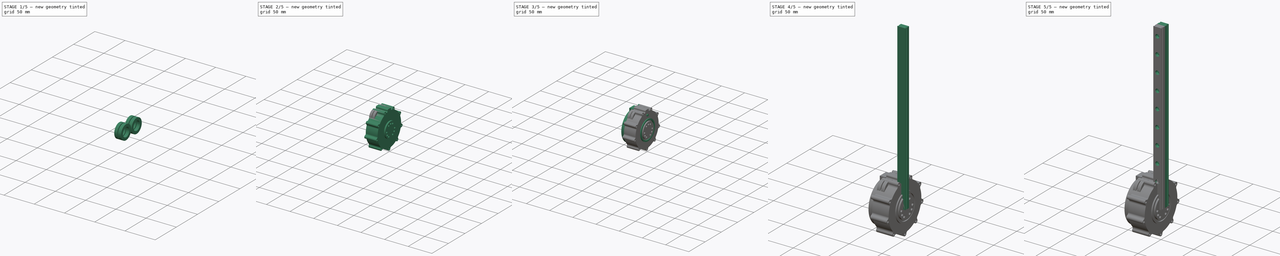
[diagram: build sequence overview — one tinted view per stage of 5, left to right]
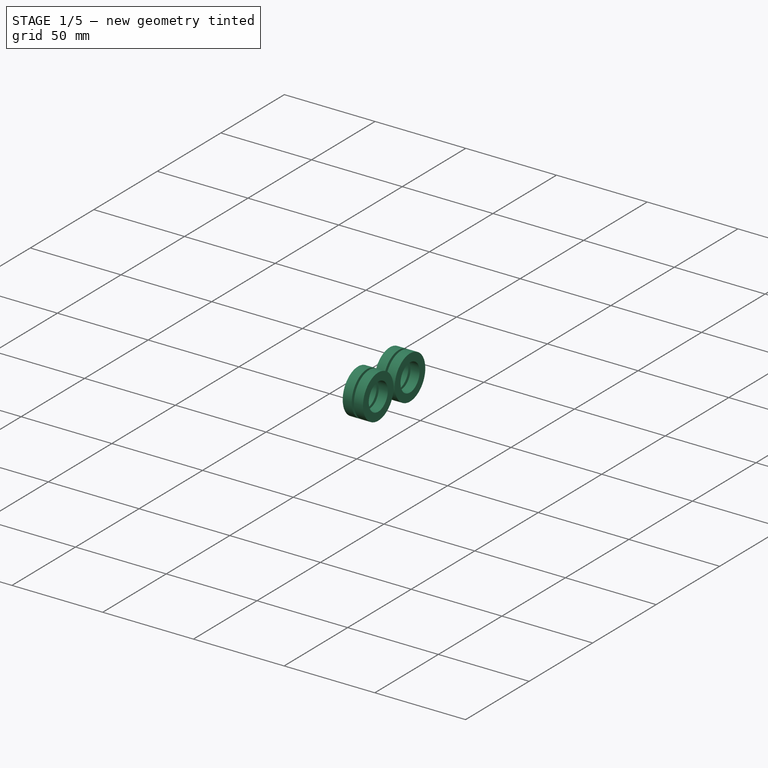
[diagram: stage 1 of 5 — iso view after this stage's code; geometry added in this stage tinted green]
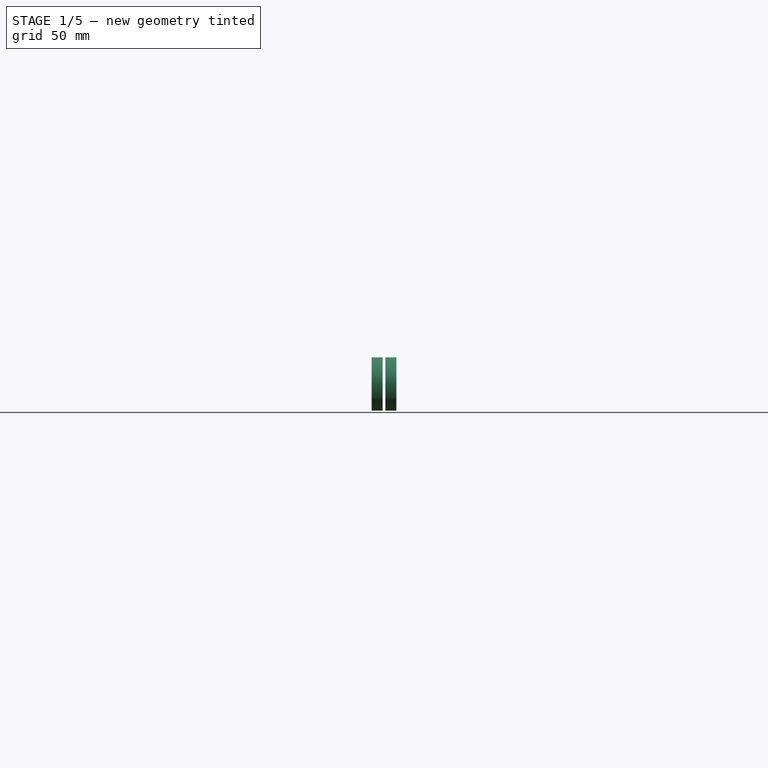
[diagram: stage 1 of 5 — front view after this stage's code; geometry added in this stage tinted green]
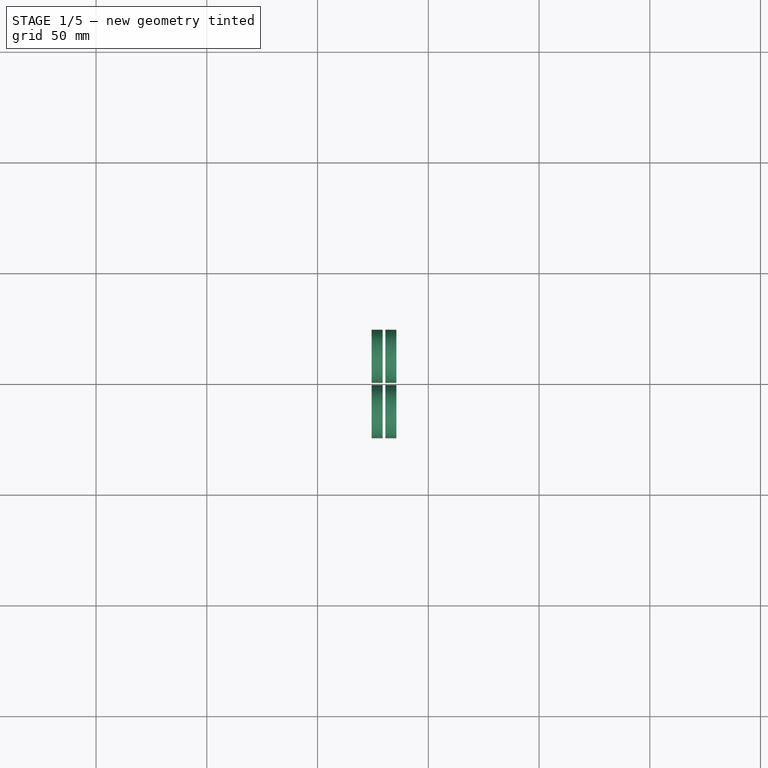
[diagram: stage 1 of 5 — top view after this stage's code; geometry added in this stage tinted green]
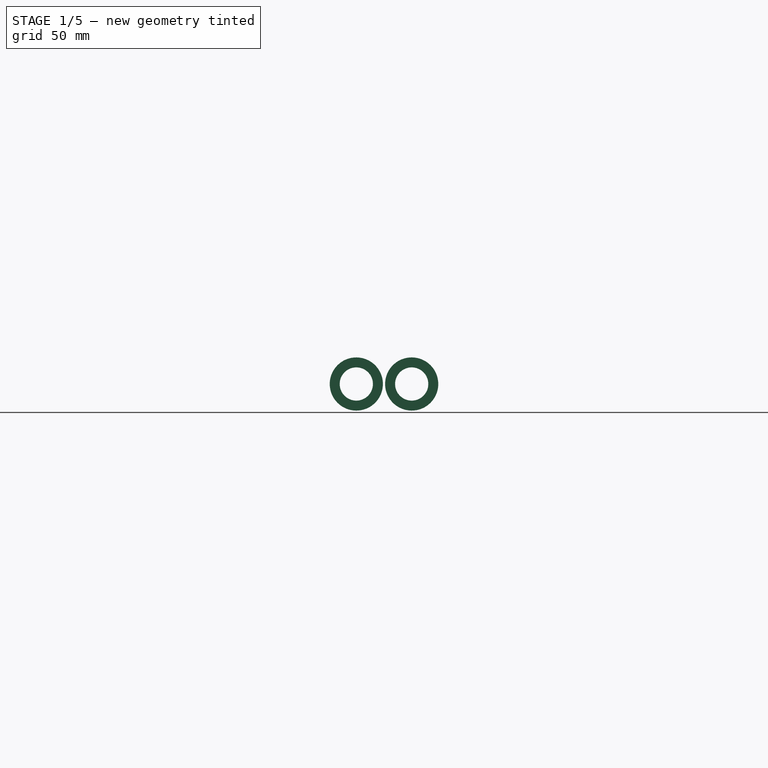
[diagram: stage 1 of 5 — right view after this stage's code; geometry added in this stage tinted green]
FCSTD DOCUMENT  (FreeCAD 1.0R39109 (Git))
Label: v13d
License: All rights reserved
LicenseURL: https://en.wikipedia.org/wiki/All_rights_reserved
objects: Sketcher::SketchObject×8, PartDesign::Pad×7, PartDesign::Body×6, App::Part×4, Part::Feature×4, PartDesign::FeatureBase×4, Part::FeaturePython×4, App::FeaturePython×1, PartDesign::Hole×1, PartDesign::LinearPattern×1, PartDesign::PolarPattern×1, PartDesign::Chamfer×1
note: 69 computed .brp shape members not serialized (recipe doc carries the construction recipe); baked Part::Feature solids carry a one-line shape summary decoded from their .brp

FEATURE [PartDesign::Body] Body010  label="CyberGear_2"
  AllowCompound = false
  Group = -> [Clone003]
  Origin = -> Origin009
  Placement = pos=(47,0,107) rot=(0,0,1;0rad)
  Tip = -> Clone003
  expr: .Placement.Base.x = dd.Wheel_X + 2 mm - dd.F3_X
  expr: .Placement.Base.z = dd.Wheel_Z
FEATURE [App::Part] Part003  label="Frame3"
  Group = -> [Body004,Body005,Body010]
  Origin = -> Origin003
  Placement = pos=(90,0,0) rot=(0,0,1;0rad)
  expr: .Placement.Base.x = dd.F3_X
  expr: .Placement.Base.z = -dd.Pos
FEATURE [Part::FeaturePython] Tube  label="B6802_G2I"  # WARN: FeaturePython — macro-defined, semantics opaque (R4)
  AttacherType = Attacher::AttachEngine3D
  Height = 5
  InnerRadius = 7.5
  OuterRadius = 12
  Placement = pos=(-20.6,12.5,25) rot=(0,1,0;4.71239rad)
  expr: .Placement.Base.x = dd.F1_X - 0.6 mm - dd.F3_X
  expr: .Placement.Base.y = dd.G2_Y
  expr: .Placement.Base.z = dd.G2_Z
FEATURE [Part::FeaturePython] Tube001  label="B6802_G2O"  # WARN: FeaturePython — macro-defined, semantics opaque (R4)
  AttacherType = Attacher::AttachEngine3D
  Height = 5
  InnerRadius = 7.5
  OuterRadius = 12
  Placement = pos=(-19.4,12.5,25) rot=(0,1,0;1.5708rad)
  expr: .Placement.Base.x = dd.F1_X + 0.6 mm - dd.F3_X
  expr: .Placement.Base.y = dd.G2_Y
  expr: .Placement.Base.z = dd.G2_Z
FEATURE [Part::FeaturePython] Tube002  label="B6802_G4I"  # WARN: FeaturePython — macro-defined, semantics opaque (R4)
  AttacherType = Attacher::AttachEngine3D
  Height = 5
  InnerRadius = 7.5
  OuterRadius = 12
  Placement = pos=(-20.6,-12.5,25) rot=(0,1,0;4.71239rad)
  expr: .Placement.Base.x = dd.F1_X - 0.6 mm - dd.F3_X
  expr: .Placement.Base.y = -dd.G2_Y
  expr: .Placement.Base.z = dd.G2_Z
FEATURE [Part::FeaturePython] Tube003  label="B6802_G4O"  # WARN: FeaturePython — macro-defined, semantics opaque (R4)
  AttacherType = Attacher::AttachEngine3D
  Height = 5
  InnerRadius = 7.5
  OuterRadius = 12
  Placement = pos=(-19.4,-12.5,25) rot=(0,1,0;1.5708rad)
  expr: .Placement.Base.x = dd.F1_X + 0.6 mm - dd.F3_X
  expr: .Placement.Base.y = -dd.G2_Y
  expr: .Placement.Base.z = dd.G2_Z
FEATURE [App::Part] Part001  label="Frame1"
  Group = -> [Body002,Body003,Body009,Tube,Tube001,Tube002,Tube003]
  Origin = -> Origin001
  Placement = pos=(90,0,0) rot=(0,0,1;0rad)
  expr: .Placement.Base.x = dd.F3_X
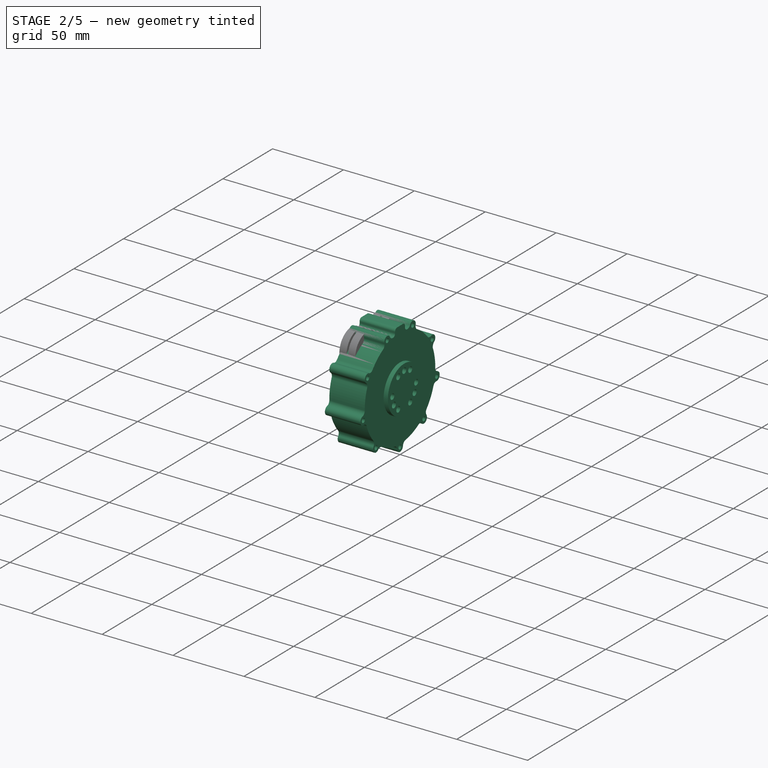
[diagram: stage 2 of 5 — iso view after this stage's code; geometry added in this stage tinted green]
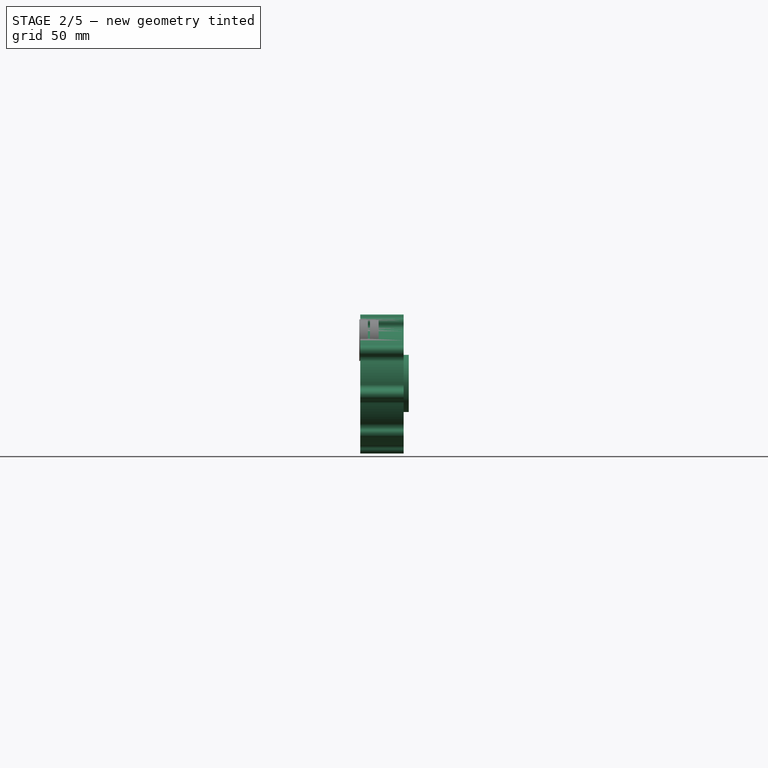
[diagram: stage 2 of 5 — front view after this stage's code; geometry added in this stage tinted green]
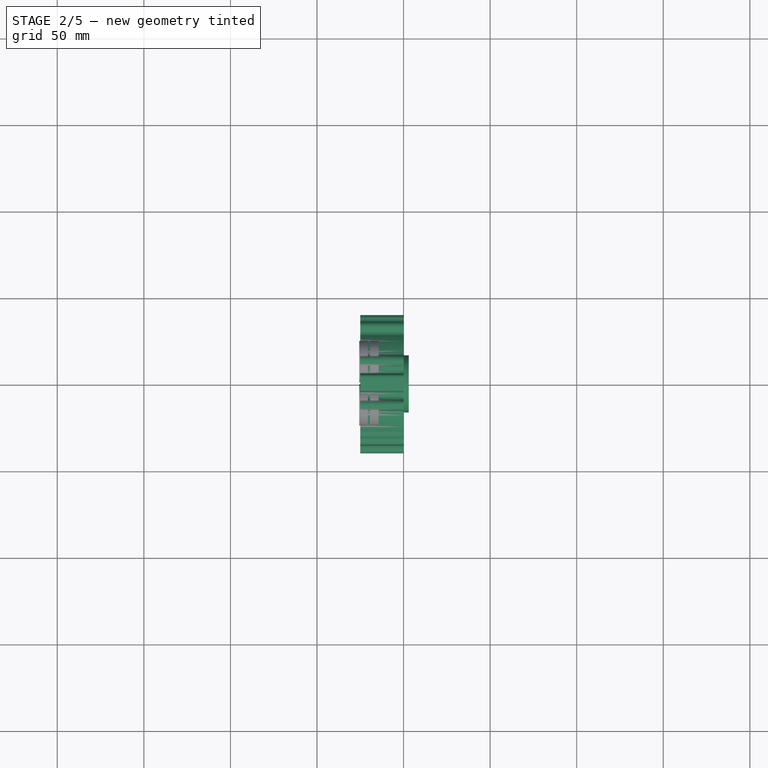
[diagram: stage 2 of 5 — top view after this stage's code; geometry added in this stage tinted green]
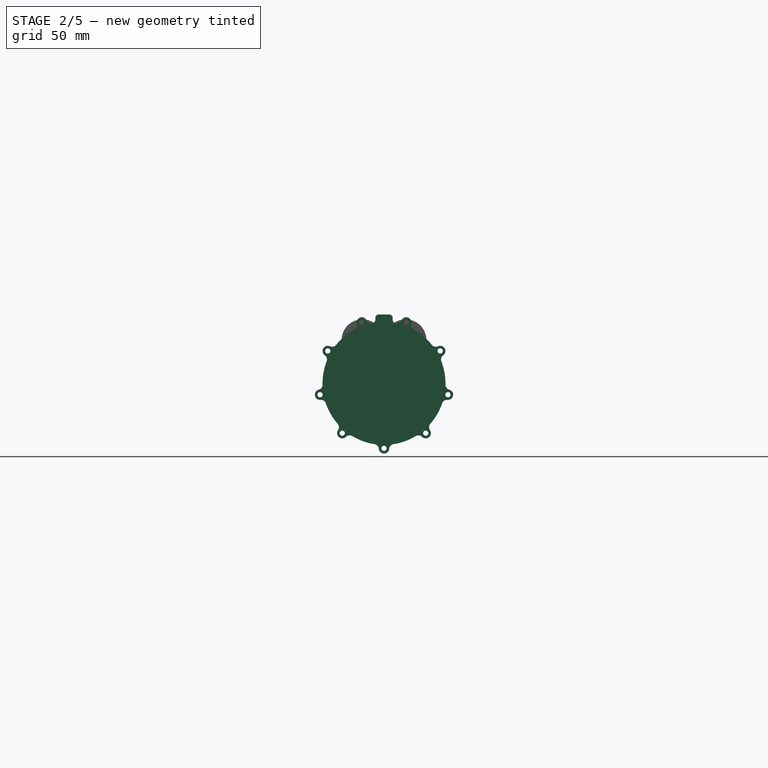
[diagram: stage 2 of 5 — right view after this stage's code; geometry added in this stage tinted green]
FEATURE [PartDesign::Body] Body008  label="MGN12_1B"
  AllowCompound = false
  Group = -> [Clone002]
  Origin = -> Origin007
  Placement = pos=(0,90,0) rot=(0,0,1;3.14159rad)
  Tip = -> Clone002
  expr: .Placement.Base.y = dd.F1_Y
FEATURE [App::Part] Part002  label="Frame2"
  Group = -> [Body,Body006,Body007,Body008]
  Origin = -> Origin002
  Placement = pos=(90,0,0) rot=(0,0,1;0rad)
  expr: .Placement.Base.x = dd.F3_X
  expr: .Placement.Base.z = -dd.Pos / 2
FEATURE [Sketcher::SketchObject] Sketch009  label="CG_Sketch000"
  ArcFitTolerance = 1e-06
  AttachmentSupport = -> [YZ_Plane008]
  FullyConstrained = true
  MakeInternals = false
  MapMode = 5
  Placement = pos=(0,0,0) rot=(0.57735,0.57735,0.57735;2.0944rad)
  sketch-geometry (23):
    g0: LineSegment [constr] StartX=10.3923 StartY=-6 StartZ=0 EndX=12 EndY=-9e-16 EndZ=0
    g1: LineSegment [constr] StartX=12 StartY=-9e-16 StartZ=0 EndX=10.3923 EndY=6 EndZ=0
    g2: LineSegment [constr] StartX=10.3923 StartY=6 StartZ=0 EndX=6 EndY=10.3923 EndZ=0
    g3: LineSegment [constr] StartX=6 StartY=10.3923 StartZ=0 EndX=0 EndY=12 EndZ=0
    g4: LineSegment [constr] StartX=0 StartY=12 StartZ=0 EndX=-6 EndY=10.3923 EndZ=0
    g5: LineSegment [constr] StartX=-6 StartY=10.3923 StartZ=0 EndX=-10.3923 EndY=6 EndZ=0
    g6: LineSegment [constr] StartX=-10.3923 StartY=6 StartZ=0 EndX=-12 EndY=-9e-16 EndZ=0
    g7: LineSegment [constr] StartX=-12 StartY=-1.1e-15 StartZ=0 EndX=-10.3923 EndY=-6 EndZ=0
    g8: LineSegment [constr] StartX=-10.3923 StartY=-6 StartZ=0 EndX=-6 EndY=-10.3923 EndZ=0
    g9: LineSegment [constr] StartX=-6 StartY=-10.3923 StartZ=0 EndX=0 EndY=-12 EndZ=0
    g10: LineSegment [constr] StartX=0 StartY=-12 StartZ=0 EndX=6 EndY=-10.3923 EndZ=0
    g11: LineSegment [constr] StartX=6 StartY=-10.3923 StartZ=0 EndX=10.3923 EndY=-6 EndZ=0
    g12: Circle [constr] CenterX=0 CenterY=0 CenterZ=0 NormalX=0 NormalY=0 NormalZ=1 AngleXU=0 Radius=12
    g13: Circle CenterX=0 CenterY=12 CenterZ=0 NormalX=0 NormalY=0 NormalZ=1 AngleXU=0 Radius=2
    g14: Circle CenterX=-6 CenterY=10.3923 CenterZ=0 NormalX=0 NormalY=0 NormalZ=1 AngleXU=0 Radius=2
    g15: Circle CenterX=6 CenterY=10.3923 CenterZ=0 NormalX=0 NormalY=0 NormalZ=1 AngleXU=0 Radius=2
    g16: Circle CenterX=12 CenterY=-9e-16 CenterZ=0 NormalX=0 NormalY=0 NormalZ=1 AngleXU=0 Radius=2
    g17: Circle CenterX=10.3923 CenterY=-6 CenterZ=0 NormalX=0 NormalY=0 NormalZ=1 AngleXU=0 Radius=2
    g18: Circle CenterX=6 CenterY=-10.3923 CenterZ=0 NormalX=0 NormalY=0 NormalZ=1 AngleXU=0 Radius=2
    g19: Circle CenterX=-6 CenterY=-10.3923 CenterZ=0 NormalX=0 NormalY=0 NormalZ=1 AngleXU=0 Radius=2
    g20: Circle CenterX=-10.3923 CenterY=-6 CenterZ=0 NormalX=0 NormalY=0 NormalZ=1 AngleXU=0 Radius=2
    g21: Circle CenterX=-12 CenterY=-1.1e-15 CenterZ=0 NormalX=0 NormalY=0 NormalZ=1 AngleXU=0 Radius=2
    g22: Circle CenterX=0 CenterY=0 CenterZ=0 NormalX=0 NormalY=0 NormalZ=1 AngleXU=0 Radius=16.5
  constraints (48):
    c: Coincident(g0,g1)
    c: Coincident(g1,g2)
    c: Coincident(g2,g3)
    c: Coincident(g3,g4)
    c: Coincident(g4,g5)
    c: Coincident(g5,g6)
    c: Coincident(g6,g7)
    c: Coincident(g7,g8)
    c: Coincident(g8,g9)
    c: Coincident(g9,g10)
    c: Coincident(g10,g11)
    c: Coincident(g11,g0)
    c: Equal(g0, g1-g11) x11
    c: PointOnObject(g0,g12)
    c: PointOnObject(g1,g12)
    c: PointOnObject(g2,g12)
    c: PointOnObject(g3,g12)
    c: PointOnObject(g4,g12)
    c: PointOnObject(g5,g12)
    c: PointOnObject(g6,g12)
    c: PointOnObject(g7,g12)
    c: PointOnObject(g8,g12)
    c: PointOnObject(g9,g12)
    c: PointOnObject(g10,g12)
    c: PointOnObject(g11,g12)
    c: Diameter(g12) = 24
    c: PointOnObject(g3,g-2)
    c: Coincident(g13,g3)
    c: Coincident(g14,g4)
    c: Coincident(g15,g2)
    c: Coincident(g16,g0)
    c: Coincident(g17,g0)
    c: Coincident(g18,g10)
    c: Coincident(g19,g8)
    c: Coincident(g20,g7)
    c: Coincident(g21,g6)
    c: Equal(g21,g14)
    c: Equal(g14,g13)
    c: Equal(g13,g15)
    c: Equal(g15,g16)
    c: Equal(g16,g17)
    c: Equal(g17,g18)
    c: Equal(g18,g19)
    c: Equal(g19,g20)
    c: Diameter(g17) = 4
    c: Diameter(g22) = 33
    c: Coincident(g22,g12)
    c: Coincident(g12,g-1)
FEATURE [PartDesign::Pad] Pad006  label="CG_Pad000"
  Direction = (1,0,0)
  Length = 3
  Length2 = 10
  Placement = pos=(0,0,0) rot=(1,1,1;2.0944rad)
  Profile = -> Sketch009
  ReferenceAxis = -> Sketch009 [N_Axis]
  Refine = true
  Suppressed = false
  Type = 0
FEATURE [Sketcher::SketchObject] Sketch010  label="CG_Sketch001"
  ArcFitTolerance = 1e-06
  AttachmentSupport = -> [YZ_Plane008]
  FullyConstrained = true
  MakeInternals = false
  MapMode = 5
  Placement = pos=(0,0,0) rot=(0.57735,0.57735,0.57735;2.0944rad)
  sketch-geometry (5):
    g0: ArcOfCircle CenterX=0 CenterY=0 CenterZ=0 NormalX=0 NormalY=0 NormalZ=1 AngleXU=0 Radius=35.5 StartAngle=4.86825 EndAngle=10.8397
    g1: ArcOfCircle CenterX=0 CenterY=-37.5 CenterZ=0 NormalX=0 NormalY=0 NormalZ=1 AngleXU=0 Radius=3 StartAngle=3.2306 EndAngle=6.19418
    g2: ArcOfCircle CenterX=-5.97625 CenterY=-38.0333 CenterZ=0 NormalX=0 NormalY=0 NormalZ=1 AngleXU=0 Radius=3 StartAngle=0.0890064 EndAngle=1.41494
    g3: ArcOfCircle CenterX=5.97625 CenterY=-38.0333 CenterZ=0 NormalX=0 NormalY=0 NormalZ=1 AngleXU=0 Radius=3 StartAngle=1.72665 EndAngle=3.05259
    g4: Circle CenterX=0 CenterY=-37.5 CenterZ=0 NormalX=0 NormalY=0 NormalZ=1 AngleXU=0 Radius=1.5
  constraints (13):
    c: Coincident(g0,g-1)
    c: Radius(g0) = 35.5
    c: PointOnObject(g1,g-2)
    c: Distance(g1,g-1) = 37.5
    c: Radius(g1) = 3
    c: Tangent(g3,g1) = 1.5708
    c: Tangent(g3,g0) = 1.5708
    c: Tangent(g2,g1) = 1.5708
    c: Tangent(g2,g0) = 1.5708
    c: Equal(g3,g2)
    c: Equal(g2,g1)
    c: Coincident(g4,g1)
    c: Diameter(g4) = 3
FEATURE [PartDesign::Pad] Pad007  label="CG_Pad001"
  BaseFeature = -> Pad006
  Direction = (1,0,0)
  Length = 25
  Length2 = 10
  Placement = pos=(0,0,0) rot=(1,1,1;2.0944rad)
  Profile = -> Sketch010
  ReferenceAxis = -> Sketch010 [N_Axis]
  Refine = true
  Reversed = true
  Suppressed = false
  Type = 0
FEATURE [PartDesign::PolarPattern] PolarPattern  label="CG_PolarPattern000"
  Angle = 360
  Axis = -> Sketch010 [N_Axis]
  BaseFeature = -> Pad007
  Mode = 0
  Occurrences = 9
  Offset = 120
  Originals = -> [Pad007]
  Placement = pos=(0,0,0) rot=(1,1,1;2.0944rad)
  Refine = true
  Suppressed = false
  TransformMode = 0
FEATURE [Sketcher::SketchObject] Sketch011  label="CG_Sketch002"
  ArcFitTolerance = 1e-06
  AttachmentSupport = -> [YZ_Plane008]
  ExternalGeometry = -> [PolarPattern]
  FullyConstrained = true
  MakeInternals = false
  MapMode = 5
  Placement = pos=(0,0,0) rot=(0.57735,0.57735,0.57735;2.0944rad)
  sketch-geometry (8):
    g0: ArcOfCircle CenterX=-7 CenterY=36.8409 CenterZ=0 NormalX=0 NormalY=0 NormalZ=1 AngleXU=0 Radius=2 StartAngle=4.90016 EndAngle=6.28319
    g1: ArcOfCircle CenterX=-3 CenterY=37.8409 CenterZ=0 NormalX=0 NormalY=0 NormalZ=1 AngleXU=0 Radius=2 StartAngle=1.5708 EndAngle=3.14159
    g2: ArcOfCircle CenterX=3 CenterY=37.8409 CenterZ=0 NormalX=0 NormalY=0 NormalZ=1 AngleXU=0 Radius=2 StartAngle=-1.92726e-11 EndAngle=1.5708
    g3: ArcOfCircle CenterX=7 CenterY=36.8409 CenterZ=0 NormalX=0 NormalY=0 NormalZ=1 AngleXU=0 Radius=2 StartAngle=3.14159 EndAngle=4.52462
    g4: LineSegment StartX=-5 StartY=37.8409 StartZ=0 EndX=-5 EndY=36.8409 EndZ=0
    g5: LineSegment StartX=-3 StartY=39.8409 StartZ=0 EndX=3 EndY=39.8409 EndZ=0
    g6: LineSegment StartX=5 StartY=37.8409 StartZ=0 EndX=5 EndY=36.8409 EndZ=0
    g7: ArcOfCircle CenterX=0 CenterY=0 CenterZ=0 NormalX=0 NormalY=0 NormalZ=1 AngleXU=0 Radius=35.5 StartAngle=1.38303 EndAngle=1.75856
  constraints (18):
    c: Symmetric(g0,g3,g-2)
    c: Symmetric(g1,g2,g-2)
    c: Equal(g2,g1)
    c: Equal(g1,g0)
    c: Vertical(g4)
    c: Tangent(g1,g5) = 1.5708
    c: Tangent(g2,g5) = 1.5708
    c: Tangent(g6,g2) = 1.5708
    c: Tangent(g4,g1) = -1.5708
    c: Distance(g1,g2) = 10
    c: Tangent(g0,g4) = 1.5708
    c: Tangent(g3,g6) = -1.5708
    c: Coincident(g7,g-1)
    c: Tangent(g7,g3) = 1.5708
    c: Tangent(g0,g7) = 1.5708
    c: Radius(g3) = 2
    c: DistanceY(g0,g1) = 3
    c: PointOnObject(g3,g-3)
FEATURE [PartDesign::Pad] Pad008  label="CG_Pad002"
  BaseFeature = -> PolarPattern
  Direction = (1,0,0)
  Length = 25
  Length2 = 10
  Placement = pos=(0,0,0) rot=(1,1,1;2.0944rad)
  Profile = -> Sketch011
  ReferenceAxis = -> Sketch011 [N_Axis]
  Refine = true
  Reversed = true
  Suppressed = false
  Type = 0
  expr: Length = <<CG_Pad001>>.Length
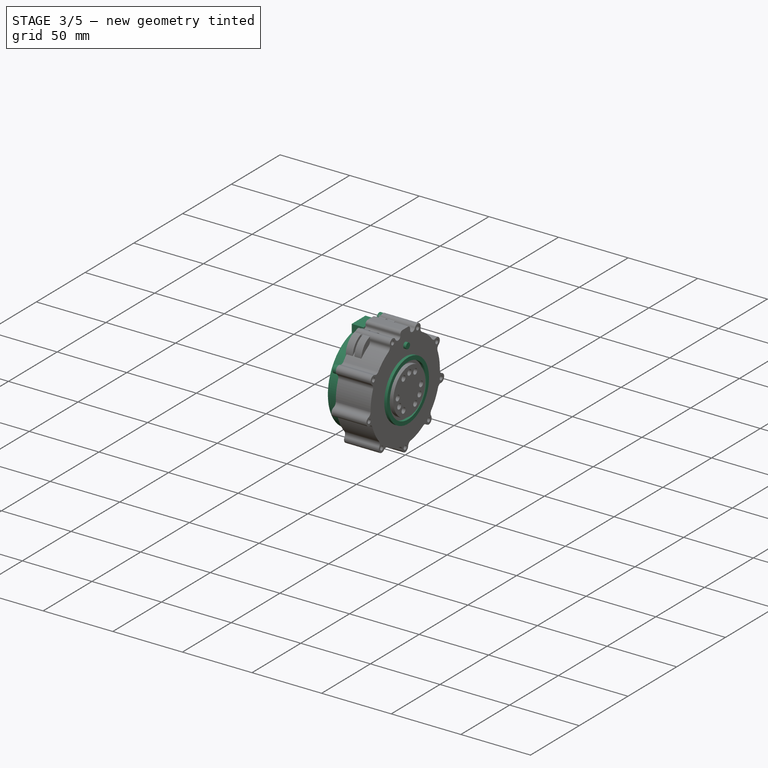
[diagram: stage 3 of 5 — iso view after this stage's code; geometry added in this stage tinted green]
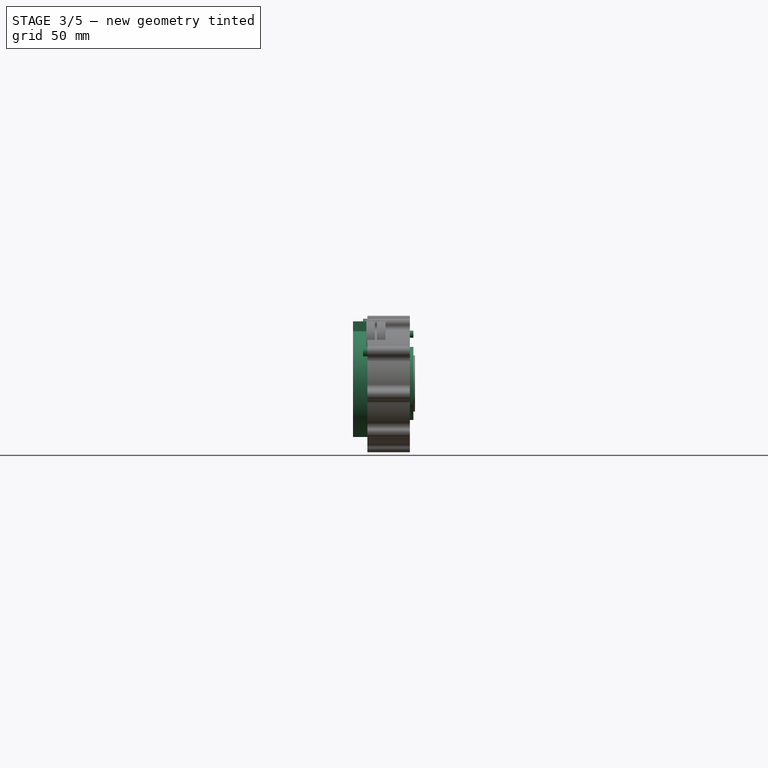
[diagram: stage 3 of 5 — front view after this stage's code; geometry added in this stage tinted green]
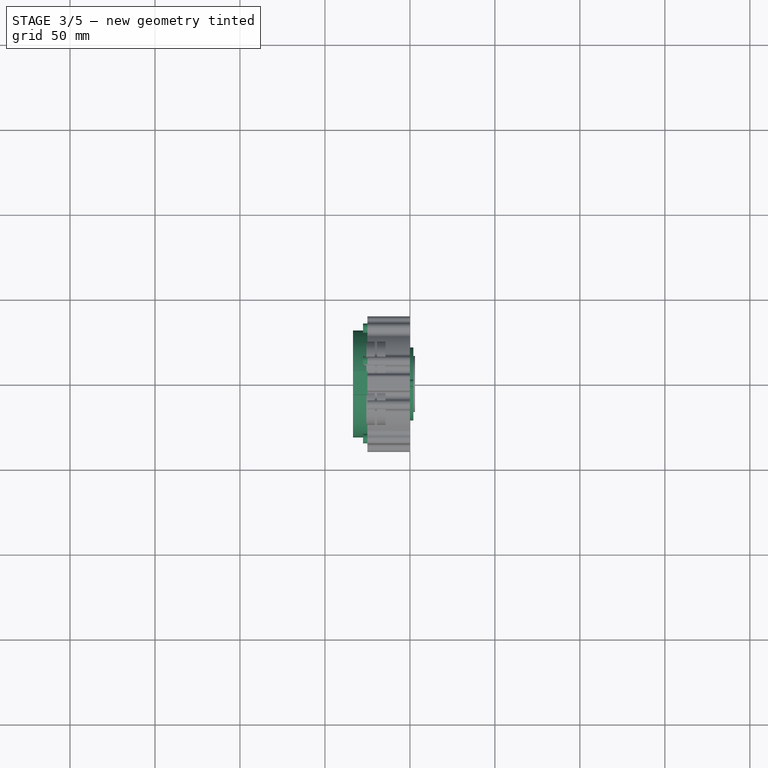
[diagram: stage 3 of 5 — top view after this stage's code; geometry added in this stage tinted green]
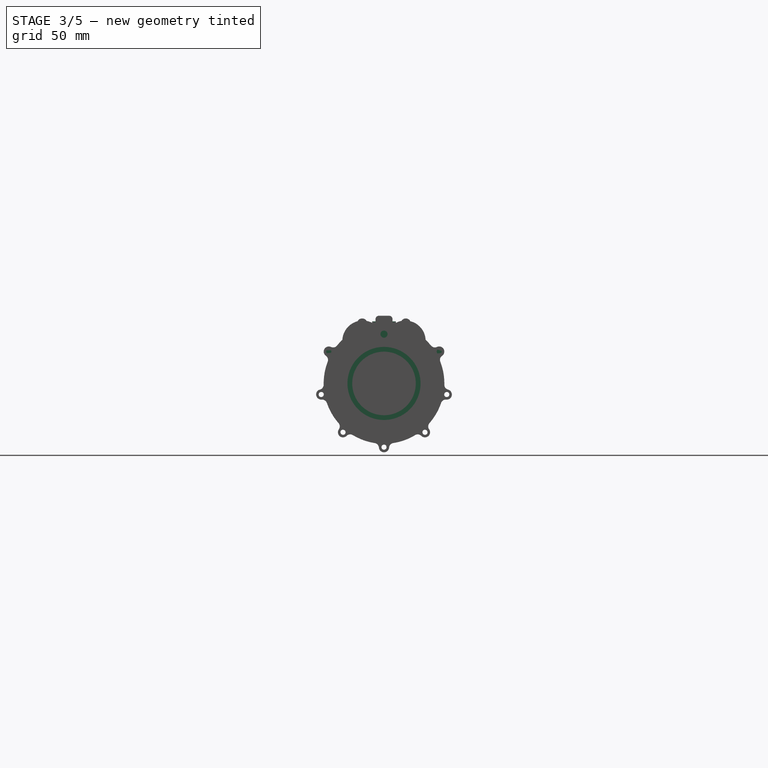
[diagram: stage 3 of 5 — right view after this stage's code; geometry added in this stage tinted green]
FEATURE [Sketcher::SketchObject] Sketch012  label="CG_Sketch003"
  ArcFitTolerance = 1e-06
  AttachmentSupport = -> [YZ_Plane008]
  FullyConstrained = true
  MakeInternals = false
  MapMode = 5
  Placement = pos=(0,0,0) rot=(0.57735,0.57735,0.57735;2.0944rad)
  expr: Constraints[3] = 43 - 2.8 * 2
  sketch-geometry (3):
    g0: Circle CenterX=0 CenterY=0 CenterZ=0 NormalX=0 NormalY=0 NormalZ=1 AngleXU=0 Radius=18.7
    g1: Circle CenterX=0 CenterY=0 CenterZ=0 NormalX=0 NormalY=0 NormalZ=1 AngleXU=0 Radius=21.5
    g2: Circle CenterX=0 CenterY=29 CenterZ=0 NormalX=0 NormalY=0 NormalZ=1 AngleXU=0 Radius=2.1
  constraints (7):
    c: Coincident(g0,g-1)
    c: Coincident(g1,g0)
    c: Diameter(g1) = 43
    c: Diameter(g0) = 37.4
    c: PointOnObject(g2,g-2)
    c: Diameter(g2) = 4.2
    c: DistanceY(g0,g2) = 29
FEATURE [PartDesign::Pad] Pad009  label="CG_Pad003"
  BaseFeature = -> Pad008
  Direction = (1,0,0)
  Length = 2
  Length2 = 10
  Placement = pos=(0,0,0) rot=(1,1,1;2.0944rad)
  Profile = -> Sketch012
  ReferenceAxis = -> Sketch012 [N_Axis]
  Refine = true
  Suppressed = false
  Type = 0
FEATURE [Sketcher::SketchObject] Sketch013  label="CG_Sketch004"
  ArcFitTolerance = 1e-06
  AttachmentOffset = pos=(0,0,-25) rot=(0,0,1;0rad)
  AttachmentSupport = -> [YZ_Plane008]
  FullyConstrained = true
  MakeInternals = false
  MapMode = 5
  Placement = pos=(-25,0,0) rot=(0.57735,0.57735,0.57735;2.0944rad)
  expr: .AttachmentOffset.Base.z = -<<CG_Pad001>>.Length
  sketch-geometry (4):
    g0: ArcOfCircle CenterX=0 CenterY=0 CenterZ=0 NormalX=0 NormalY=0 NormalZ=1 AngleXU=0 Radius=31.5 StartAngle=1.79489 EndAngle=7.62989
    g1: LineSegment StartX=-7 StartY=30.7124 StartZ=0 EndX=-7 EndY=36.5 EndZ=0
    g2: LineSegment StartX=-7 StartY=36.5 StartZ=0 EndX=7 EndY=36.5 EndZ=0
    g3: LineSegment StartX=7 StartY=36.5 StartZ=0 EndX=7 EndY=30.7124 EndZ=0
  constraints (11):
    c: Coincident(g0,g-1)
    c: Radius(g0) = 31.5
    c: Coincident(g1,g2)
    c: Coincident(g2,g3)
    c: Vertical(g3)
    c: Symmetric(g1,g2,g-2)
    c: Vertical(g1)
    c: Coincident(g0,g1)
    c: Coincident(g3,g0)
    c: Distance(g2,g2) = 14
    c: Distance(g1,g-1) = 36.5
FEATURE [PartDesign::Pad] Pad010  label="CG_Pad004"
  BaseFeature = -> Pad009
  Direction = (1,0,0)
  Length = 8.5
  Length2 = 10
  Placement = pos=(0,0,0) rot=(1,1,1;2.0944rad)
  Profile = -> Sketch013
  ReferenceAxis = -> Sketch013 [N_Axis]
  Refine = true
  Reversed = true
  Suppressed = false
  Type = 0
FEATURE [Sketcher::SketchObject] Sketch014  label="CG_Sketch005"
  ArcFitTolerance = 1e-06
  AttachmentOffset = pos=(0,0,-25) rot=(0,0,1;0rad)
  AttachmentSupport = -> [YZ_Plane008]
  ExternalGeometry = -> [Pad010]
  FullyConstrained = true
  MakeInternals = false
  MapMode = 5
  Placement = pos=(-25,0,0) rot=(0.57735,0.57735,0.57735;2.0944rad)
  expr: .AttachmentOffset.Base.z = -<<CG_Pad001>>.Length
  sketch-geometry (3):
    g0: Circle CenterX=12.8258 CenterY=35.2385 CenterZ=0 NormalX=0 NormalY=0 NormalZ=1 AngleXU=0 Radius=2.8
    g1: Circle CenterX=32.476 CenterY=18.75 CenterZ=0 NormalX=0 NormalY=0 NormalZ=1 AngleXU=0 Radius=2.8
    g2: Circle CenterX=-32.476 CenterY=18.75 CenterZ=0 NormalX=0 NormalY=0 NormalZ=1 AngleXU=0 Radius=2.8
  constraints (6):
    c: Coincident(g1,g-3)
    c: Equal(g2,g1)
    c: Equal(g1,g0)
    c: Diameter(g0) = 5.6
    c: Coincident(g2,g-4)
    c: Coincident(g0,g-5)
FEATURE [PartDesign::Pad] Pad011  label="CG_Pad005"
  BaseFeature = -> Pad010
  Direction = (1,0,0)
  Length = 2.6
  Length2 = 10
  Placement = pos=(0,0,0) rot=(1,1,1;2.0944rad)
  Profile = -> Sketch014
  ReferenceAxis = -> Sketch014 [N_Axis]
  Refine = true
  Reversed = true
  Suppressed = false
  Type = 0
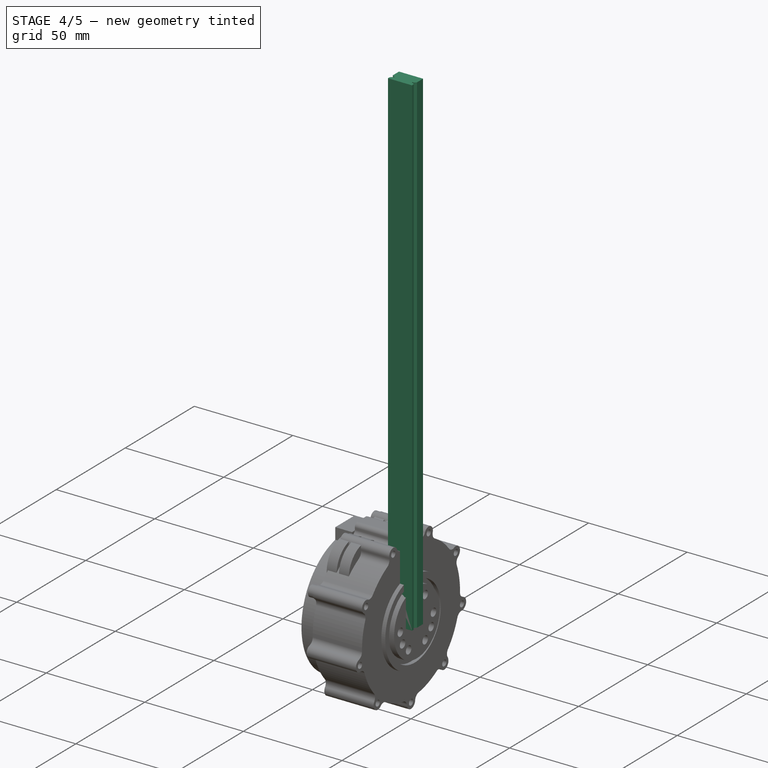
[diagram: stage 4 of 5 — iso view after this stage's code; geometry added in this stage tinted green]
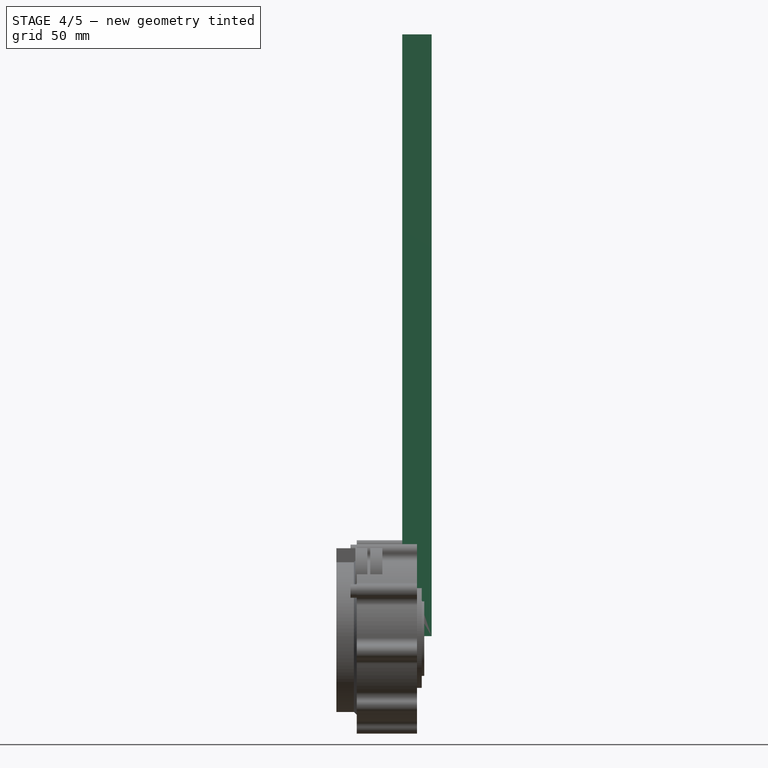
[diagram: stage 4 of 5 — front view after this stage's code; geometry added in this stage tinted green]
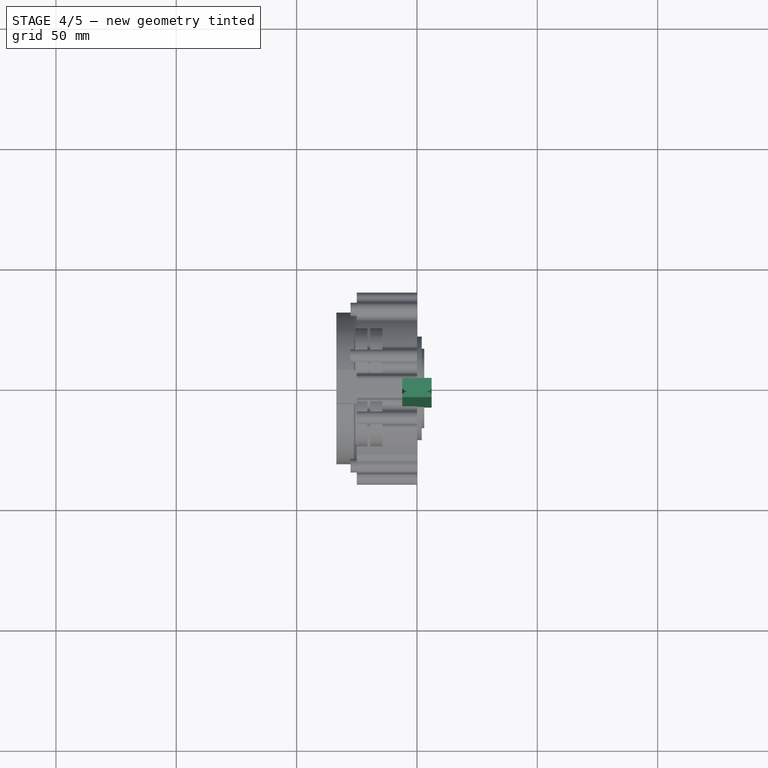
[diagram: stage 4 of 5 — top view after this stage's code; geometry added in this stage tinted green]
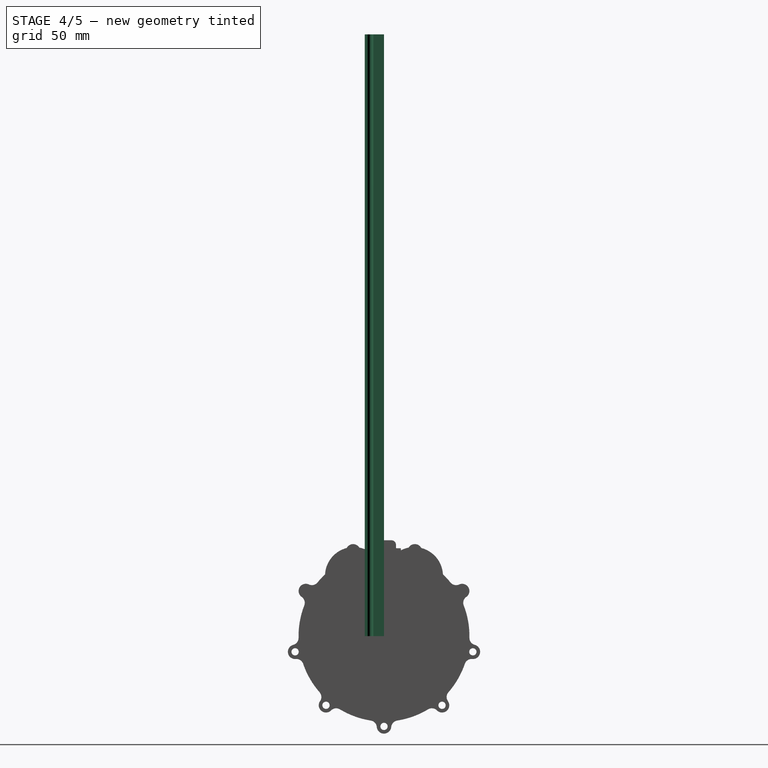
[diagram: stage 4 of 5 — right view after this stage's code; geometry added in this stage tinted green]
FEATURE [App::FeaturePython] dd  # WARN: FeaturePython — macro-defined, semantics opaque (R4)
  CG1_X = 51.2
  CG1_Z = 55.541
  DynamicData = Created with DynamicData (v2.74) workbench. | This is a simple container object built | for holding custom properties.
  F1_X = 70
  F1_Y = 90
  F2_X = 70
  F3_X = 90
  F3_Y = 80
  G1_Module = 1.5
  G1_Teeth = 24
  G1_Width = 12
  G2_Teeth = 20
  G2_Y = 12.5
  G2_Z = 25
  G3_Module = 1.25
  G3_Teeth = 20
  G3_Width = 7.6
  MGN_Len = 250
  Pos = 0
  Wheel_X = 135
  Wheel_Z = 107
  expr: CG1_X = F1_X - G1_Width - 6.8 mm
  expr: CG1_Z = G2_Z + sqrt(pow((G1_Teeth + G2_Teeth) * G1_Module / 2; 2) - G2_Y * G2_Y)
  expr: F2_X = F3_X - 20 mm
  expr: F3_Y = F1_Y - 10 mm
  expr: G1_Width = G1_Module * 8
  expr: G2_Y = G3_Module * G3_Teeth / 2
FEATURE [App::Part] Part  label="Draft"
  Origin = -> Origin
FEATURE [Part::Feature] Body002  label="MGN12H_1F"
  Placement = pos=(0,-90,2) rot=(0,0,1;3.14159rad)
  shape: bbox 27 x 10 x 46 mm, 24 faces (baked)
  expr: .Placement.Base.y = -dd.F1_Y
FEATURE [Part::Feature] Body003  label="MGN12H_1B"
  Placement = pos=(0,90,2) rot=(0,0,1;0rad)
  shape: bbox 27 x 10 x 46 mm, 24 faces (baked)
  expr: .Placement.Base.y = dd.F1_Y
FEATURE [Part::Feature] Body004  label="MGN12H_3F"
  Placement = pos=(0,-80,202) rot=(0,0,1;0rad)
  shape: bbox 27 x 10 x 46 mm, 24 faces (baked)
  expr: .Placement.Base.y = -dd.F3_Y
  expr: .Placement.Base.z = dd.MGN_Len - 48 mm
FEATURE [Part::Feature] Body005  label="MGN12H_3B"
  Placement = pos=(0,80,202) rot=(0,0,1;3.14159rad)
  shape: bbox 27 x 10 x 46 mm, 24 faces (baked)
  expr: .Placement.Base.y = dd.F3_Y
  expr: .Placement.Base.z = dd.MGN_Len - 48 mm
FEATURE [Sketcher::SketchObject] Sketch008  label="MGN12_Sketch003"
  ArcFitTolerance = 1e-06
  FullyConstrained = true
  MakeInternals = false
  MapMode = 5
  Placement = pos=(0,0,0) rot=(0,0,1;3.14159rad)
  sketch-geometry (17):
    g0: LineSegment StartX=-6.1 StartY=0 StartZ=0 EndX=6.1 EndY=0 EndZ=0
    g1: LineSegment StartX=-6.1 StartY=4.4 StartZ=0 EndX=-5.2 EndY=5.3 EndZ=0
    g2: LineSegment StartX=-5.2 StartY=5.3 StartZ=0 EndX=-4.5 EndY=5.3 EndZ=0
    g3: LineSegment StartX=-4.5 StartY=5.3 StartZ=0 EndX=-4.5 EndY=5.9 EndZ=0
    g4: LineSegment StartX=-4.5 StartY=5.9 StartZ=0 EndX=-5.2 EndY=5.9 EndZ=0
    g5: LineSegment StartX=-5.2 StartY=5.9 StartZ=0 EndX=-6.1 EndY=6.8 EndZ=0
    g6: LineSegment StartX=-6.1 StartY=6.8 StartZ=0 EndX=-6.1 EndY=8 EndZ=0
    g7: LineSegment StartX=-6.1 StartY=8 StartZ=0 EndX=6.1 EndY=8 EndZ=0
    g8: LineSegment StartX=6.1 StartY=8 StartZ=0 EndX=6.1 EndY=6.8 EndZ=0
    g9: LineSegment StartX=6.1 StartY=6.8 StartZ=0 EndX=5.2 EndY=5.9 EndZ=0
    g10: LineSegment StartX=5.2 StartY=5.9 StartZ=0 EndX=4.5 EndY=5.9 EndZ=0
    g11: LineSegment StartX=4.5 StartY=5.9 StartZ=0 EndX=4.5 EndY=5.3 EndZ=0
    g12: LineSegment StartX=4.5 StartY=5.3 StartZ=0 EndX=5.2 EndY=5.3 EndZ=0
    g13: LineSegment StartX=5.2 StartY=5.3 StartZ=0 EndX=6.1 EndY=4.4 EndZ=0
    g14: LineSegment [constr] StartX=-6.1 StartY=5.6 StartZ=0 EndX=6.1 EndY=5.6 EndZ=0
    g15: LineSegment StartX=-6.1 StartY=0 StartZ=0 EndX=-6.1 EndY=4.4 EndZ=0
    g16: LineSegment StartX=6.1 StartY=4.4 StartZ=0 EndX=6.1 EndY=0 EndZ=0
  constraints (43):
    c: PointOnObject(g0,g-1)
    c: Symmetric(g0,g0,g-2)
    c: DistanceX(g0,g0) = 12.2
    c: Coincident(g15,g1)
    c: Coincident(g1,g2)
    c: Horizontal(g2)
    c: Coincident(g2,g3)
    c: Vertical(g3)
    c: Coincident(g3,g4)
    c: Coincident(g4,g5)
    c: Coincident(g5,g6)
    c: Vertical(g6)
    c: Coincident(g6,g7)
    c: Horizontal(g7)
    c: Coincident(g7,g8)
    c: Vertical(g8)
    c: Coincident(g8,g9)
    c: Coincident(g9,g10)
    c: Coincident(g10,g11)
    c: Vertical(g11)
    c: Coincident(g11,g12)
    c: Horizontal(g12)
    c: Coincident(g12,g13)
    c: Coincident(g13,g16)
    c: Symmetric(g2,g3,g14)
    c: Symmetric(g1,g4,g14)
    c: Symmetric(g15,g5,g14)
    c: Symmetric(g5,g8,g-2)
    c: Symmetric(g10,g3,g-2)
    c: Symmetric(g12,g1,g-2)
    c: Symmetric(g9,g12,g14)
    c: DistanceY(g0,g6) = 8
    c: DistanceX(g2,g11) = 9
    c: DistanceY(g3,g3) = 0.6
    c: Distance(g14,g6) = 2.4
    c: Perpendicular(g5,g1)
    c: DistanceX(g15,g1) = 0.9
    c: Symmetric(g15,g13,g-2)
    c: Vertical(g16)
    c: PointOnObject(g14,g16)
    c: Coincident(g16,g0)
    c: Coincident(g15,g0)
    c: PointOnObject(g14,g15)
FEATURE [PartDesign::Pad] Pad  label="MG_Pad000"
  Direction = (0,0,1)
  Length = 250
  Length2 = 10
  Placement = pos=(0,0,0) rot=(0,0,1;3.14159rad)
  Profile = -> Sketch008
  ReferenceAxis = -> Sketch008 [N_Axis]
  Refine = true
  Suppressed = false
  Type = 0
  expr: Length = dd.MGN_Len
FEATURE [Sketcher::SketchObject] Sketch  label="MG_Sketch000"
  ArcFitTolerance = 1e-06
  AttachmentSupport = -> [Pad]
  FullyConstrained = true
  MakeInternals = false
  MapMode = 5
  Placement = pos=(-1e-15,-8,0) rot=(1,0,0;1.5708rad)
  sketch-geometry (1):
    g0: Circle CenterX=0 CenterY=12.5 CenterZ=0 NormalX=0 NormalY=0 NormalZ=1 AngleXU=0 Radius=1.75
  constraints (3):
    c: PointOnObject(g0,g-2)
    c: Distance(g0,g-1) = 12.5
    c: Diameter(g0) = 3.5
FEATURE [PartDesign::Hole] Hole  label="MG_Hole000"
  BaseFeature = -> Pad
  CustomThreadClearance = 0
  Depth = 505.859
  DepthType = 1
  Diameter = 3.5
  DrillForDepth = false
  DrillPoint = 1
  DrillPointAngle = 118
  HoleCutCountersinkAngle = 179
  HoleCutCustomValues = false
  HoleCutDepth = 4.5
  HoleCutDiameter = 6
  HoleCutType = 3
  ModelThread = false
  Placement = pos=(0,0,0) rot=(0,0,1;3.14159rad)
  Profile = -> Sketch
  Refine = true
  Suppressed = false
  Tapered = false
  TaperedAngle = 90
  ThreadClass = 0
  ThreadDepth = 505.859
  ThreadDepthType = 0
  ThreadDirection = 0
  ThreadFit = 0
  ThreadSize = 0
  ThreadType = 0
  Threaded = false
  UseCustomThreadClearance = false
FEATURE [PartDesign::Chamfer] Chamfer  label="CG_Chamfer000"
  Angle = 45
  Base = -> Pad011 [Edge92]
  BaseFeature = -> Pad011
  ChamferType = 0
  FlipDirection = false
  Placement = pos=(0,0,0) rot=(1,1,1;2.0944rad)
  Refine = true
  Size = 1.2
  Size2 = 1
  SupportTransform = false
  Suppressed = false
  UseAllEdges = false
FEATURE [PartDesign::Body] Body009  label="CyberGear_1"
  AllowCompound = false
  Group = -> [Sketch009,Pad006,Sketch010,Pad007,PolarPattern,Sketch011,Pad008,Sketch012,Pad009,Sketch013,Pad010,Sketch014,Pad011,Chamfer]
  Origin = -> Origin008
  Placement = pos=(-38.8,0,55.541) rot=(0,0,1;0rad)
  Tip = -> Chamfer
  expr: .Placement.Base.x = dd.CG1_X - dd.F3_X
  expr: .Placement.Base.z = dd.CG1_Z
FEATURE [PartDesign::FeatureBase] Clone003  label="CG_Clone003"
  BaseFeature = -> Body009
  Suppressed = false
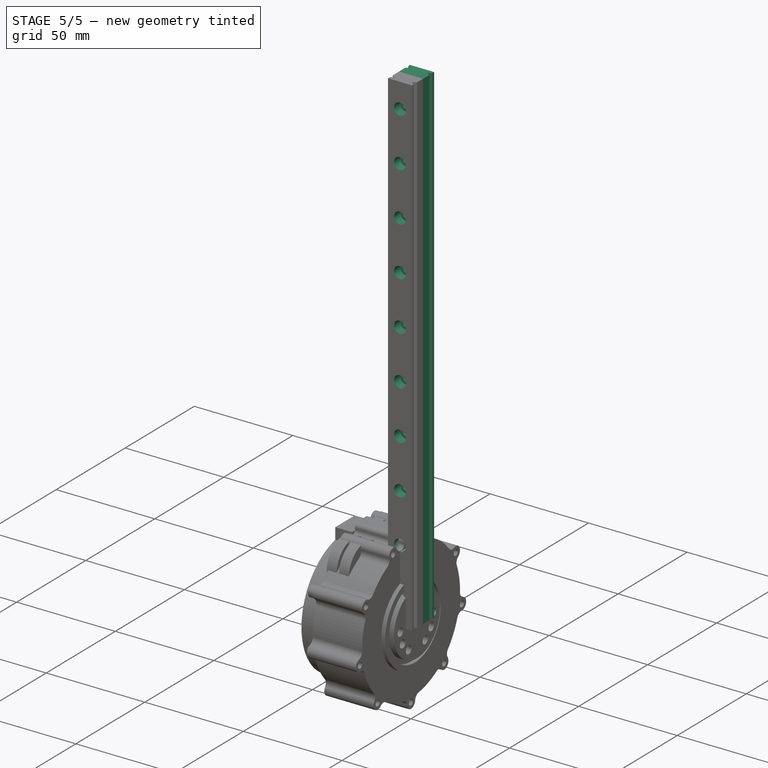
[diagram: stage 5 of 5 — iso view after this stage's code; geometry added in this stage tinted green]
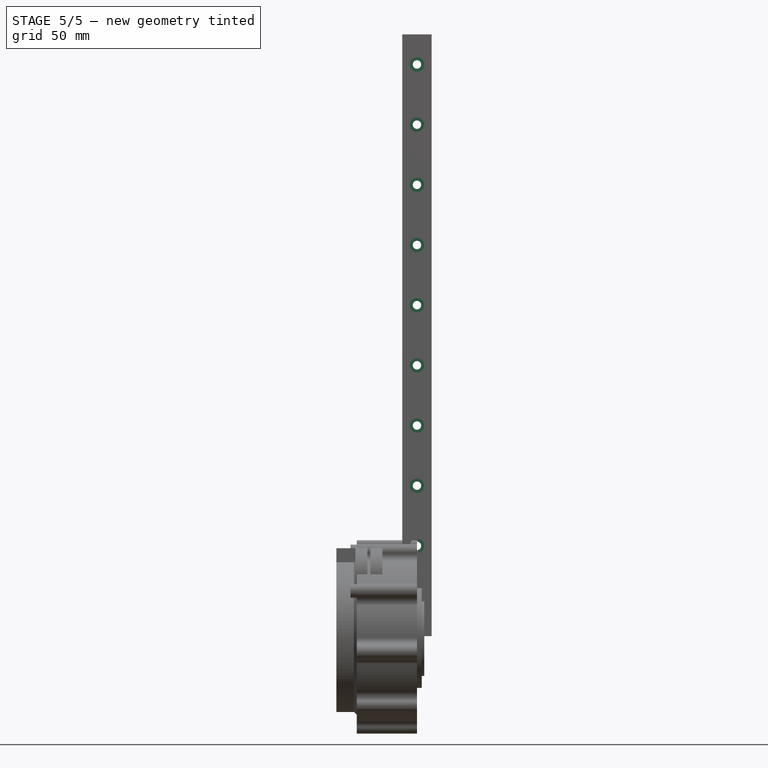
[diagram: stage 5 of 5 — front view after this stage's code; geometry added in this stage tinted green]
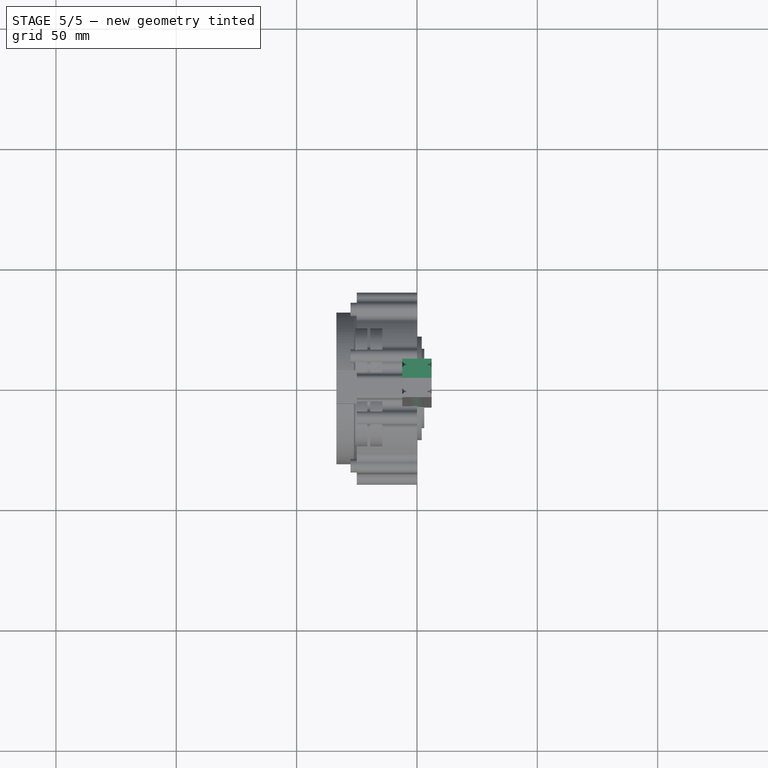
[diagram: stage 5 of 5 — top view after this stage's code; geometry added in this stage tinted green]
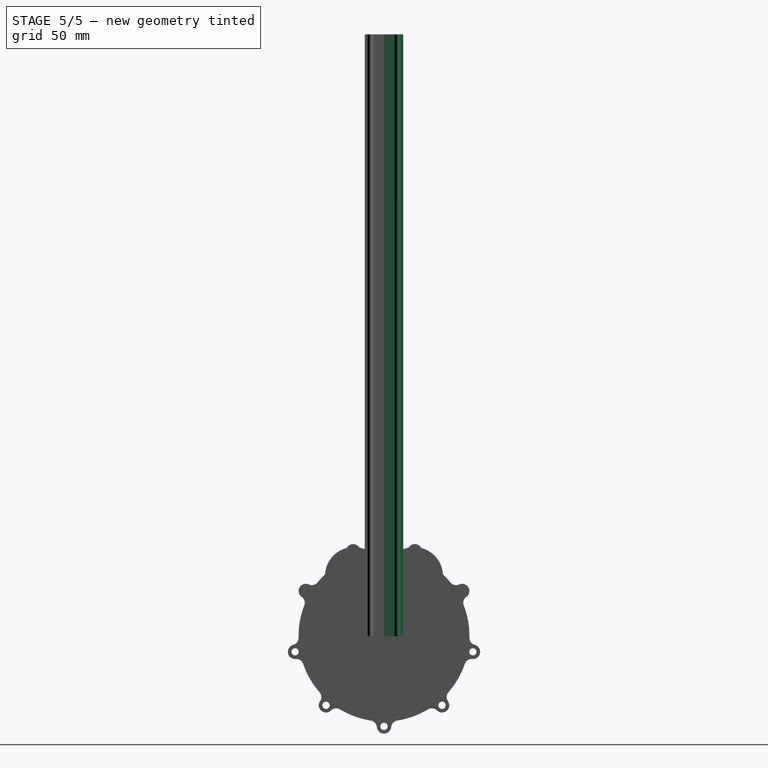
[diagram: stage 5 of 5 — right view after this stage's code; geometry added in this stage tinted green]
FEATURE [PartDesign::LinearPattern] LinearPattern  label="MG_LinearPattern000"
  BaseFeature = -> Hole
  Direction = -> Z_Axis004
  Length = 225
  Mode = 0
  Occurrences = 10
  Offset = 25
  Originals = -> [Hole]
  Placement = pos=(0,0,0) rot=(0,0,1;3.14159rad)
  Refine = true
  Suppressed = false
  TransformMode = 0
  expr: Length = dd.MGN_Len - 25 mm
  expr: Occurrences = 1 + (dd.MGN_Len - 25 mm) / 25 mm
FEATURE [PartDesign::Body] Body  label="MGN12_1F"
  AllowCompound = false
  Group = -> [Sketch008,Pad,Sketch,Hole,LinearPattern]
  Origin = -> Origin004
  Placement = pos=(0,-90,0) rot=(0,0,1;0rad)
  Tip = -> LinearPattern
  expr: .Placement.Base.y = -dd.F1_Y
FEATURE [PartDesign::FeatureBase] Clone  label="MG_Clone000"
  BaseFeature = -> Body
  Placement = pos=(0,0,0) rot=(0,0,1;3.14159rad)
  Suppressed = false
FEATURE [PartDesign::Body] Body006  label="MGN12_3F"
  AllowCompound = false
  Group = -> [Clone]
  Origin = -> Origin005
  Placement = pos=(0,-80,0) rot=(0,0,1;0rad)
  Tip = -> Clone
  expr: .Placement.Base.y = -dd.F3_Y
FEATURE [PartDesign::FeatureBase] Clone001
  BaseFeature = -> Body
  Suppressed = false
FEATURE [PartDesign::Body] Body007  label="MGN12_3B"
  AllowCompound = false
  Group = -> [Clone001]
  Origin = -> Origin006
  Placement = pos=(0,80,0) rot=(0,0,1;0rad)
  Tip = -> Clone001
  expr: .Placement.Base.y = dd.F3_Y
FEATURE [PartDesign::FeatureBase] Clone002  label="MG_Clone002"
  BaseFeature = -> Body
  Suppressed = false
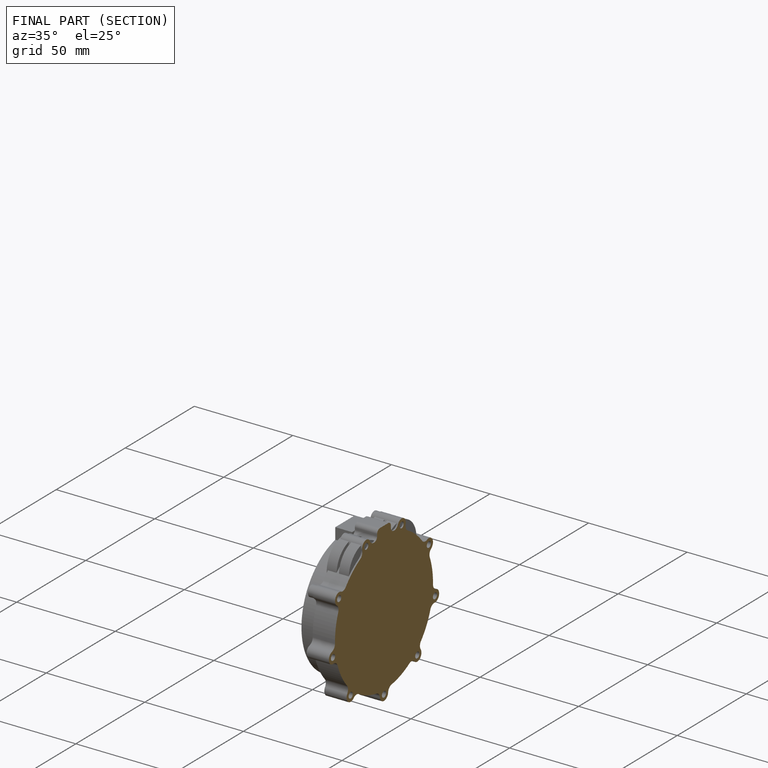
[diagram: finished part — half-section view (interior)]
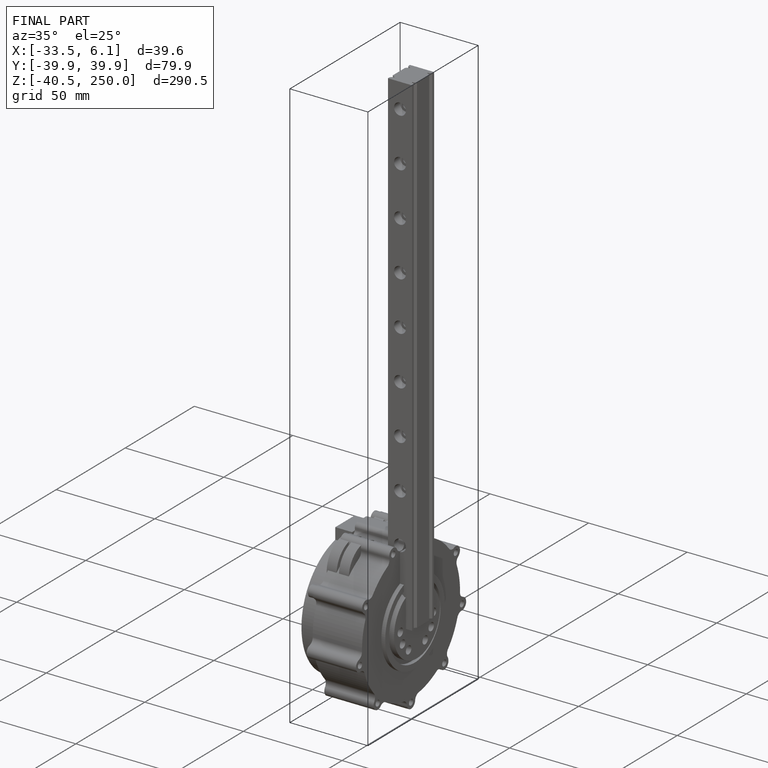
[diagram: finished part — iso view with bounding-box wireframe]
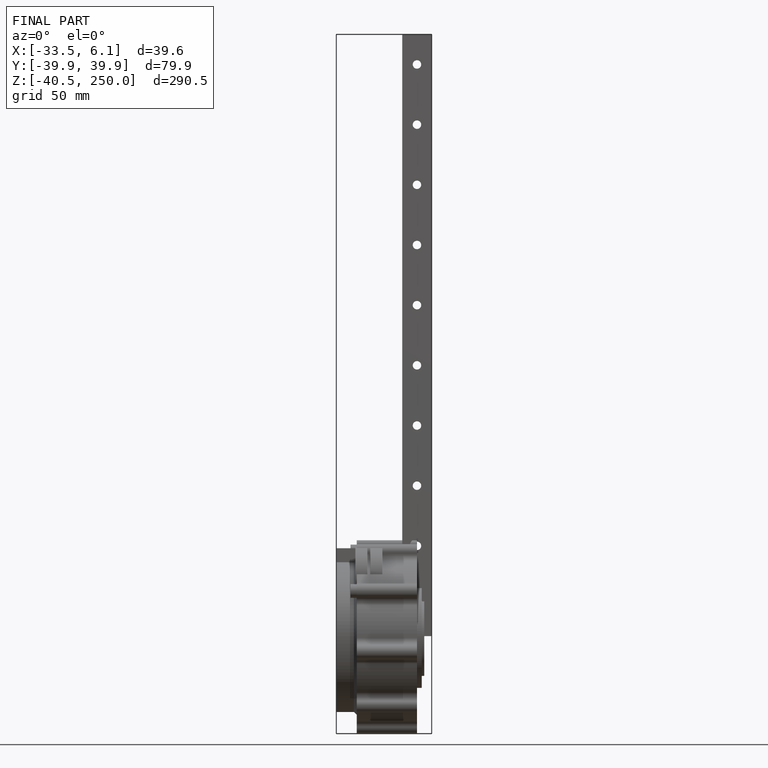
[diagram: finished part — front view with bounding-box wireframe]
